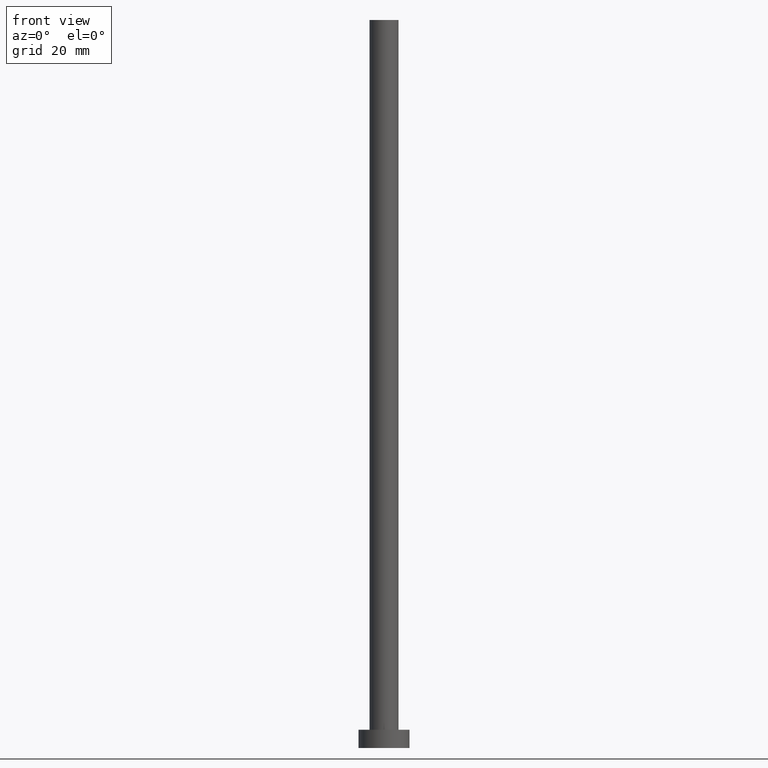
[diagram: clean part render]
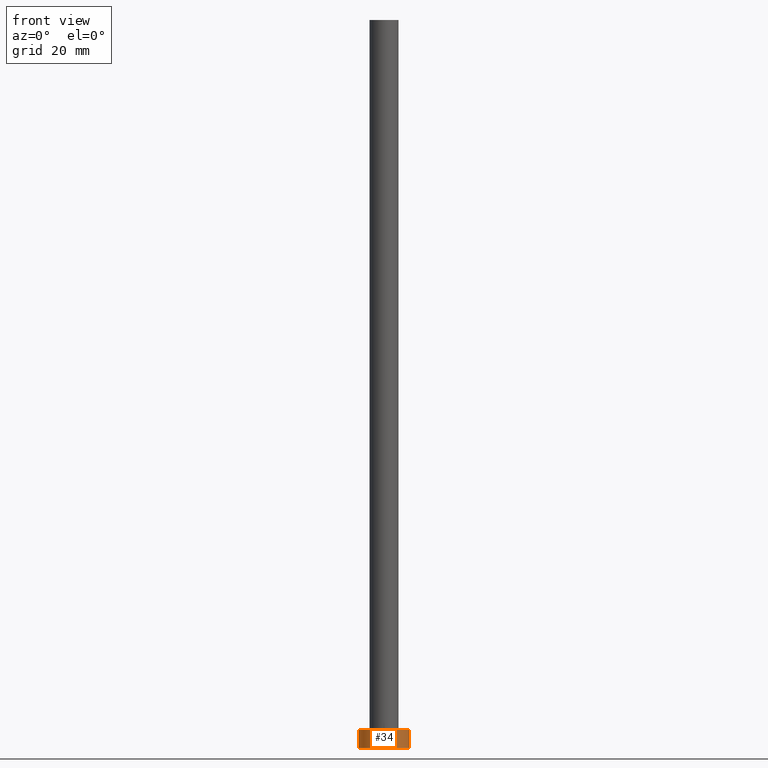
[diagram: same view with one face highlighted and labeled with its STEP entity id]
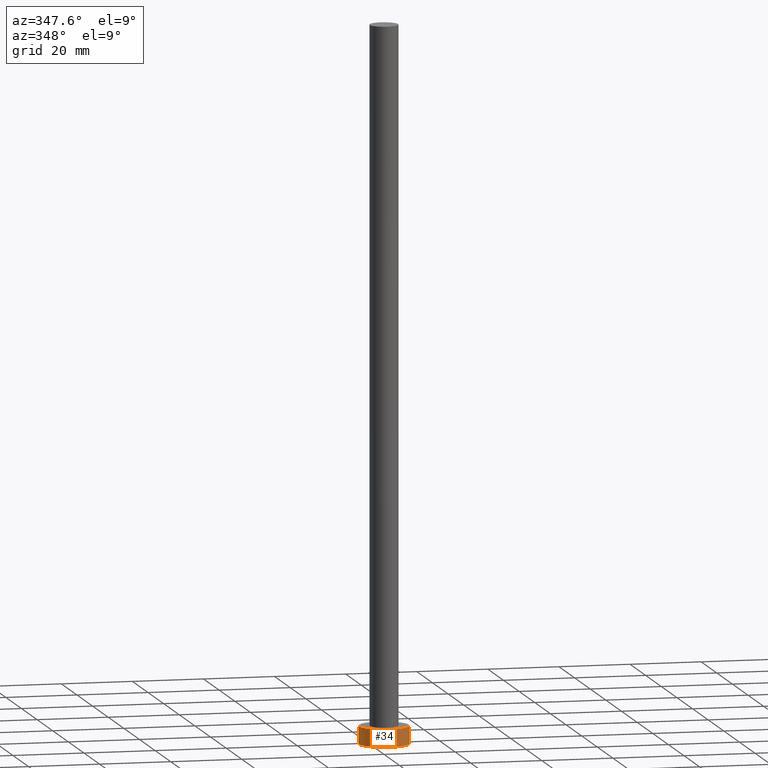
[diagram: same view with one face highlighted and labeled with its STEP entity id]
A machine part, front view. The second image highlights one B-rep face of the part: STEP entity #34.
A second angle (auxiliary view) of the same face is appended — the face is thin or edge-on in the first view.
In plain terms, the highlighted cylindrical surface (edge-blend (fillet) strip) has radius 7 mm, axis along (-0, -0, -1).
Its self-contained STEP definition (entity closure, byte-faithful):
#2 = CARTESIAN_POINT ( 'NONE',  ( 0.000000000000000000, 0.000000000000000000, 0.000000000000000000 ) ) ;
#7 = EDGE_CURVE ( 'NONE', #38, #97, #185, .T. ) ;
#11 = DIRECTION ( 'NONE',  ( -0.000000000000000000, -0.000000000000000000, -1.000000000000000000 ) ) ;
#15 = EDGE_CURVE ( 'NONE', #37, #137, #80, .T. ) ;
#18 = ORIENTED_EDGE ( 'NONE', *, *, #7, .F. ) ;
#20 = EDGE_CURVE ( 'NONE', #38, #37, #130, .T. ) ;
#22 = CARTESIAN_POINT ( 'NONE',  ( 7.000000000000000000, 8.572527594031473190E-16, 0.000000000000000000 ) ) ;
#24 = FACE_OUTER_BOUND ( 'NONE', #233, .T. ) ;
#27 = AXIS2_PLACEMENT_3D ( 'NONE', #236, #199, #28 ) ;
#28 = DIRECTION ( 'NONE',  ( -1.000000000000000000, 0.000000000000000000, 0.000000000000000000 ) ) ;
#30 = CYLINDRICAL_SURFACE ( 'NONE', #27, 7.000000000000000000 ) ;
#34 = ADVANCED_FACE ( 'NONE', ( #24 ), #30, .T. ) ;
#37 = VERTEX_POINT ( 'NONE', #105 ) ;
#38 = VERTEX_POINT ( 'NONE', #175 ) ;
#50 = DIRECTION ( 'NONE',  ( 0.000000000000000000, 0.000000000000000000, 1.000000000000000000 ) ) ;
#62 = ORIENTED_EDGE ( 'NONE', *, *, #15, .T. ) ;
#64 = DIRECTION ( 'NONE',  ( 1.000000000000000000, 0.000000000000000000, 0.000000000000000000 ) ) ;
#74 = CARTESIAN_POINT ( 'NONE',  ( 7.000000000000000000, 8.572527594031473190E-16, 5.000000000000000000 ) ) ;
#80 = CIRCLE ( 'NONE', #179, 7.000000000000000000 ) ;
#83 = ORIENTED_EDGE ( 'NONE', *, *, #20, .T. ) ;
#84 = DIRECTION ( 'NONE',  ( 0.000000000000000000, 0.000000000000000000, 1.000000000000000000 ) ) ;
#97 = VERTEX_POINT ( 'NONE', #147 ) ;
#101 = CARTESIAN_POINT ( 'NONE',  ( 0.000000000000000000, 0.000000000000000000, 5.000000000000000000 ) ) ;
#105 = CARTESIAN_POINT ( 'NONE',  ( -7.000000000000000000, 0.000000000000000000, 0.000000000000000000 ) ) ;
#128 = LINE ( 'NONE', #74, #198 ) ;
#130 = LINE ( 'NONE', #238, #144 ) ;
#137 = VERTEX_POINT ( 'NONE', #22 ) ;
#144 = VECTOR ( 'NONE', #11, 1000.000000000000000 ) ;
#147 = CARTESIAN_POINT ( 'NONE',  ( 7.000000000000000000, 8.572527594031473190E-16, 5.000000000000000000 ) ) ;
#153 = DIRECTION ( 'NONE',  ( 1.000000000000000000, 0.000000000000000000, 0.000000000000000000 ) ) ;
#175 = CARTESIAN_POINT ( 'NONE',  ( -7.000000000000000000, 0.000000000000000000, 5.000000000000000000 ) ) ;
#179 = AXIS2_PLACEMENT_3D ( 'NONE', #2, #50, #64 ) ;
#182 = EDGE_CURVE ( 'NONE', #97, #137, #128, .T. ) ;
#185 = CIRCLE ( 'NONE', #223, 7.000000000000000000 ) ;
#189 = ORIENTED_EDGE ( 'NONE', *, *, #182, .F. ) ;
#198 = VECTOR ( 'NONE', #244, 1000.000000000000000 ) ;
#199 = DIRECTION ( 'NONE',  ( -0.000000000000000000, -0.000000000000000000, -1.000000000000000000 ) ) ;
#223 = AXIS2_PLACEMENT_3D ( 'NONE', #101, #84, #153 ) ;
#233 = EDGE_LOOP ( 'NONE', ( #189, #18, #83, #62 ) ) ;
#236 = CARTESIAN_POINT ( 'NONE',  ( 0.000000000000000000, 0.000000000000000000, 5.000000000000000000 ) ) ;
#238 = CARTESIAN_POINT ( 'NONE',  ( -7.000000000000000000, 0.000000000000000000, 5.000000000000000000 ) ) ;
#244 = DIRECTION ( 'NONE',  ( -0.000000000000000000, -0.000000000000000000, -1.000000000000000000 ) ) ;